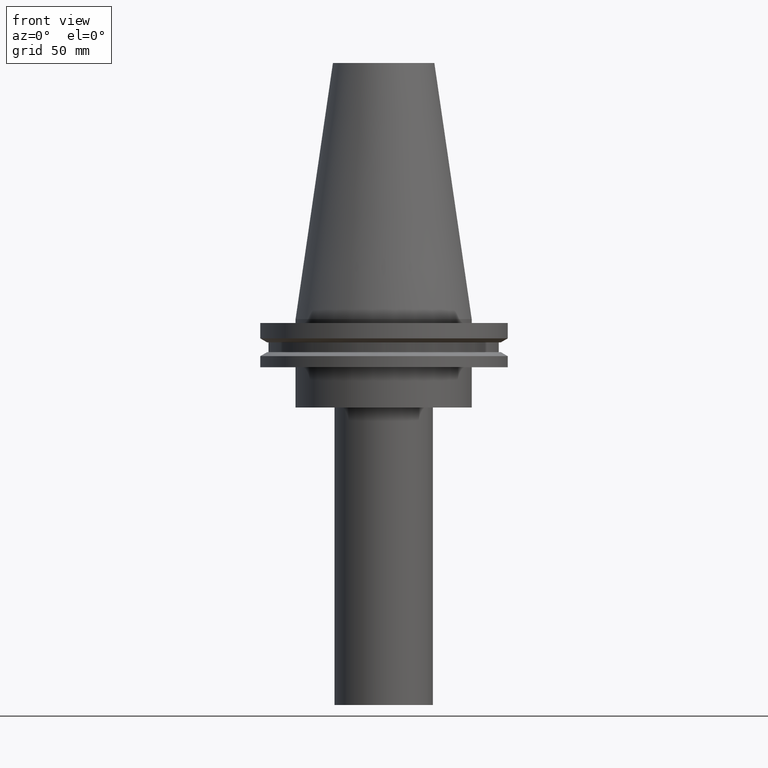
[diagram: clean part render]
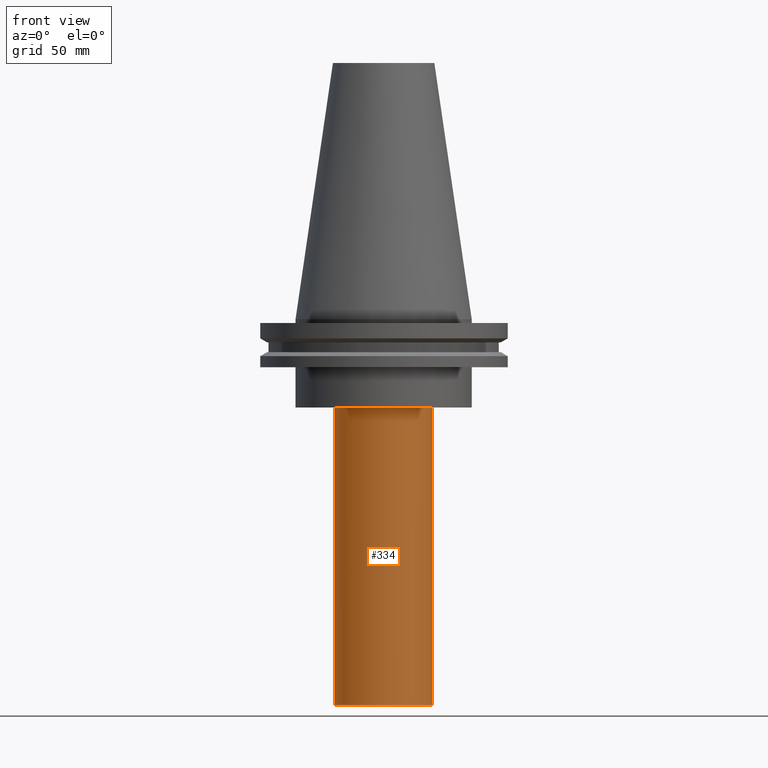
[diagram: same view with one face highlighted and labeled with its STEP entity id]
A machine part, front view. The second image highlights one B-rep face of the part: STEP entity #334.
In plain terms, the highlighted cylindrical surface (bore or boss wall) has radius 19.5 mm, axis along (-0, -0, 1).
Its self-contained STEP definition (entity closure, byte-faithful):
#12 = AXIS2_PLACEMENT_3D ( 'NONE', #140, #255, #166 ) ;
#21 = CARTESIAN_POINT ( 'NONE',  ( 19.50000000000000000, 0.000000000000000000, -35.00000000000000000 ) ) ;
#23 = AXIS2_PLACEMENT_3D ( 'NONE', #390, #226, #77 ) ;
#26 = CYLINDRICAL_SURFACE ( 'NONE', #23, 19.50000000000000000 ) ;
#44 = CIRCLE ( 'NONE', #12, 19.50000000000000000 ) ;
#61 = EDGE_CURVE ( 'NONE', #207, #207, #44, .T. ) ;
#77 = DIRECTION ( 'NONE',  ( 1.000000000000000000, 0.000000000000000000, 0.000000000000000000 ) ) ;
#128 = EDGE_LOOP ( 'NONE', ( #276 ) ) ;
#130 = CIRCLE ( 'NONE', #265, 19.50000000000000000 ) ;
#140 = CARTESIAN_POINT ( 'NONE',  ( 0.000000000000000000, 0.000000000000000000, -35.00000000000000000 ) ) ;
#154 = CARTESIAN_POINT ( 'NONE',  ( 0.000000000000000000, 0.000000000000000000, -153.0000000000000000 ) ) ;
#157 = DIRECTION ( 'NONE',  ( -0.000000000000000000, -0.000000000000000000, 1.000000000000000000 ) ) ;
#166 = DIRECTION ( 'NONE',  ( 1.000000000000000000, 0.000000000000000000, 0.000000000000000000 ) ) ;
#193 = ORIENTED_EDGE ( 'NONE', *, *, #61, .F. ) ;
#204 = FACE_OUTER_BOUND ( 'NONE', #216, .T. ) ;
#207 = VERTEX_POINT ( 'NONE', #21 ) ;
#216 = EDGE_LOOP ( 'NONE', ( #193 ) ) ;
#226 = DIRECTION ( 'NONE',  ( -0.000000000000000000, -0.000000000000000000, 1.000000000000000000 ) ) ;
#230 = FACE_OUTER_BOUND ( 'NONE', #128, .T. ) ;
#239 = EDGE_CURVE ( 'NONE', #261, #261, #130, .T. ) ;
#255 = DIRECTION ( 'NONE',  ( -0.000000000000000000, -0.000000000000000000, 1.000000000000000000 ) ) ;
#261 = VERTEX_POINT ( 'NONE', #333 ) ;
#265 = AXIS2_PLACEMENT_3D ( 'NONE', #154, #157, #281 ) ;
#276 = ORIENTED_EDGE ( 'NONE', *, *, #239, .T. ) ;
#281 = DIRECTION ( 'NONE',  ( 1.000000000000000000, 0.000000000000000000, 0.000000000000000000 ) ) ;
#333 = CARTESIAN_POINT ( 'NONE',  ( 19.50000000000000000, 0.000000000000000000, -153.0000000000000000 ) ) ;
#334 = ADVANCED_FACE ( 'NONE', ( #204, #230 ), #26, .T. ) ;
#390 = CARTESIAN_POINT ( 'NONE',  ( 0.000000000000000000, 0.000000000000000000, 0.000000000000000000 ) ) ;